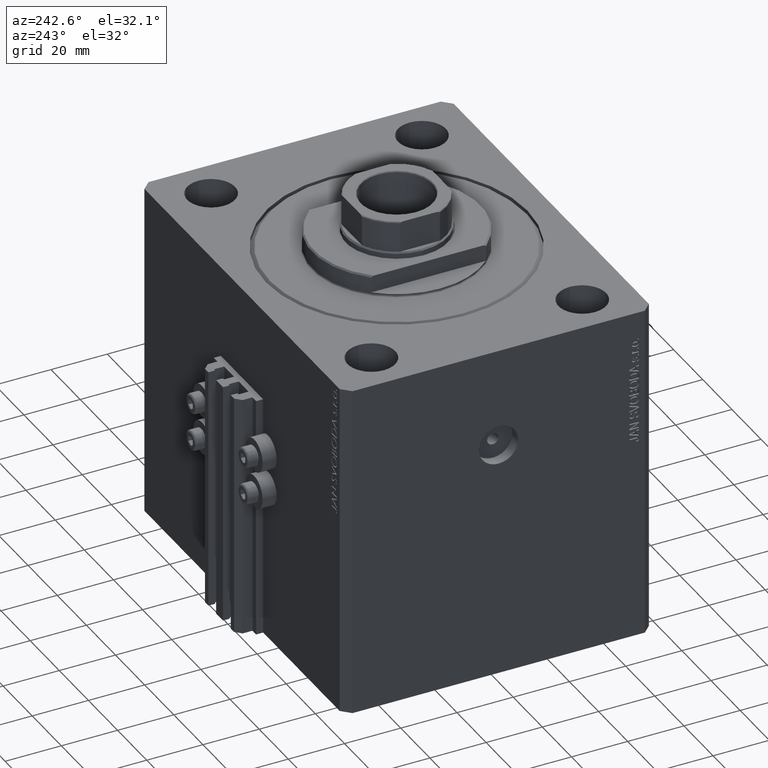
[diagram: clean part render]
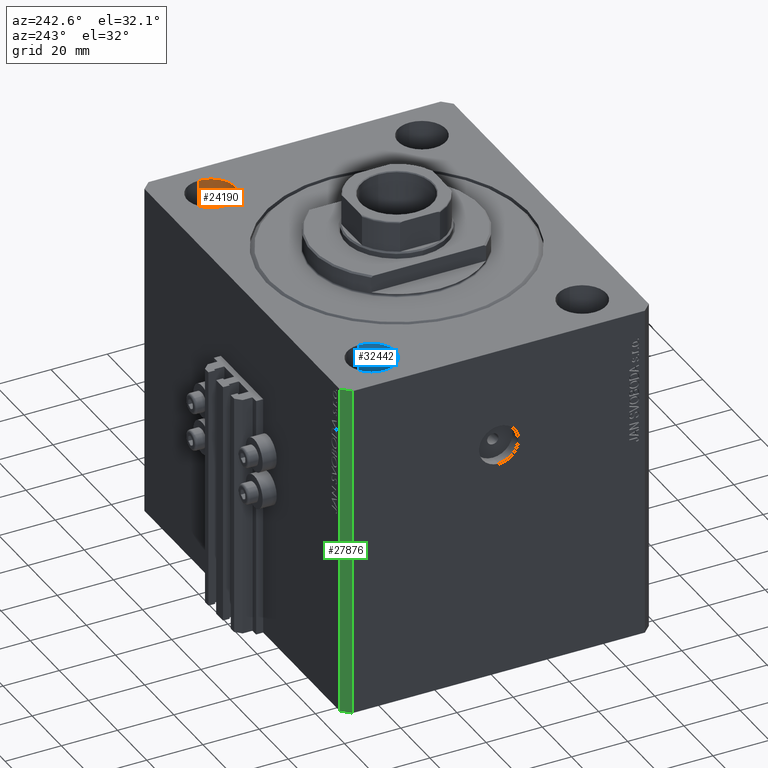
[diagram: same view with three faces highlighted in distinct colors, each labeled with its STEP entity id]
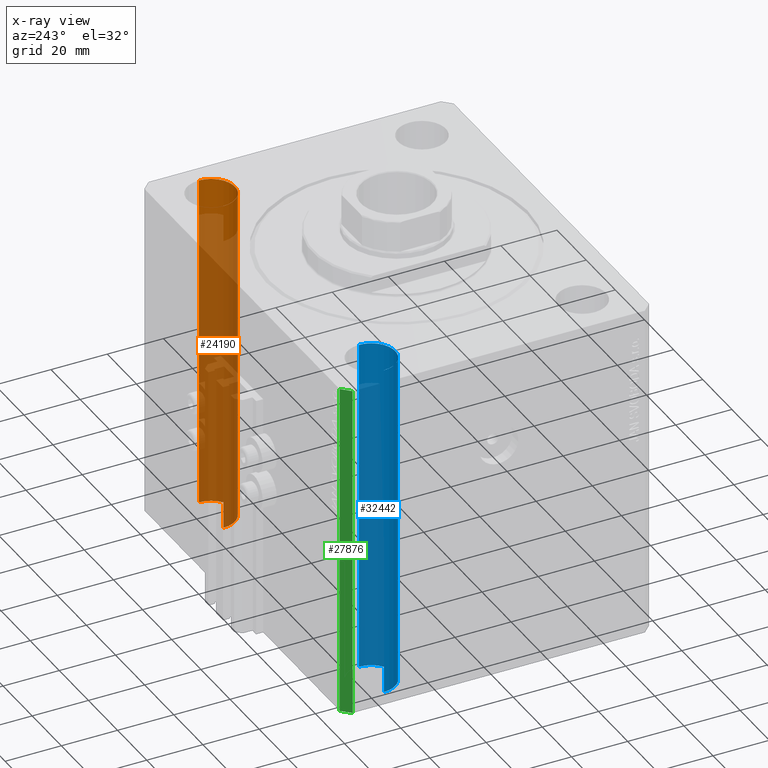
[diagram: x-ray of the same camera — body ghosted, the three highlighted faces saturated]
A machine part, auxiliary view with three faces highlighted in distinct colors.
The next image is the same camera in x-ray (body ghosted, the three faces saturated) — at least one of them is partly hidden behind the body in this view.
Their STEP definitions:

[orange] entity #24190 — the highlighted cylindrical surface (edge-blend (fillet) strip) has radius 8.5 mm, axis along (0, 0, 1).
#97 = CARTESIAN_POINT ( 'NONE',  ( 55.00000000000000711, 37.49999999999998579, 0.000000000000000000 ) ) ;
#1755 = AXIS2_PLACEMENT_3D ( 'NONE', #42468, #35067, #42227 ) ;
#2306 = ORIENTED_EDGE ( 'NONE', *, *, #18747, .F. ) ;
#2996 = DIRECTION ( 'NONE',  ( 1.000000000000000000, 0.000000000000000000, 0.000000000000000000 ) ) ;
#5436 = AXIS2_PLACEMENT_3D ( 'NONE', #97, #39843, #14688 ) ;
#6579 = CYLINDRICAL_SURFACE ( 'NONE', #20098, 8.499999999999992895 ) ;
#7972 = ORIENTED_EDGE ( 'NONE', *, *, #15176, .T. ) ;
#9890 = VERTEX_POINT ( 'NONE', #35789 ) ;
#11578 = VERTEX_POINT ( 'NONE', #32713 ) ;
#13872 = CIRCLE ( 'NONE', #5436, 8.499999999999992895 ) ;
#14019 = DIRECTION ( 'NONE',  ( -0.000000000000000000, -0.000000000000000000, 1.000000000000000000 ) ) ;
#14688 = DIRECTION ( 'NONE',  ( 1.000000000000000000, 0.000000000000000000, 0.000000000000000000 ) ) ;
#14726 = LINE ( 'NONE', #47303, #26121 ) ;
#15176 = EDGE_CURVE ( 'NONE', #45822, #9890, #13872, .T. ) ;
#15776 = LINE ( 'NONE', #26087, #40271 ) ;
#17801 = CIRCLE ( 'NONE', #1755, 8.499999999999992895 ) ;
#18747 = EDGE_CURVE ( 'NONE', #24942, #9890, #14726, .T. ) ;
#20098 = AXIS2_PLACEMENT_3D ( 'NONE', #24764, #31714, #2996 ) ;
#22865 = EDGE_CURVE ( 'NONE', #24942, #11578, #17801, .T. ) ;
#23589 = CARTESIAN_POINT ( 'NONE',  ( 46.50000000000001421, 37.49999999999998579, 0.000000000000000000 ) ) ;
#24190 = ADVANCED_FACE ( 'NONE', ( #39132 ), #6579, .F. ) ;
#24764 = CARTESIAN_POINT ( 'NONE',  ( 55.00000000000000711, 37.49999999999998579, -144.0416305603426395 ) ) ;
#24942 = VERTEX_POINT ( 'NONE', #36585 ) ;
#26087 = CARTESIAN_POINT ( 'NONE',  ( 46.50000000000001421, 37.49999999999998579, -144.0416305603426395 ) ) ;
#26121 = VECTOR ( 'NONE', #14019, 1000.000000000000000 ) ;
#31714 = DIRECTION ( 'NONE',  ( -0.000000000000000000, -0.000000000000000000, 1.000000000000000000 ) ) ;
#32713 = CARTESIAN_POINT ( 'NONE',  ( 46.50000000000001421, 37.49999999999998579, -120.0000000000000000 ) ) ;
#33283 = DIRECTION ( 'NONE',  ( -0.000000000000000000, -0.000000000000000000, 1.000000000000000000 ) ) ;
#33445 = EDGE_LOOP ( 'NONE', ( #35528, #33598, #7972, #2306 ) ) ;
#33598 = ORIENTED_EDGE ( 'NONE', *, *, #35243, .T. ) ;
#35067 = DIRECTION ( 'NONE',  ( -0.000000000000000000, -0.000000000000000000, -1.000000000000000000 ) ) ;
#35243 = EDGE_CURVE ( 'NONE', #11578, #45822, #15776, .T. ) ;
#35528 = ORIENTED_EDGE ( 'NONE', *, *, #22865, .T. ) ;
#35789 = CARTESIAN_POINT ( 'NONE',  ( 63.50000000000000000, 37.49999999999998579, 0.000000000000000000 ) ) ;
#36585 = CARTESIAN_POINT ( 'NONE',  ( 63.50000000000000000, 37.49999999999998579, -120.0000000000000000 ) ) ;
#39132 = FACE_OUTER_BOUND ( 'NONE', #33445, .T. ) ;
#39843 = DIRECTION ( 'NONE',  ( 0.000000000000000000, 0.000000000000000000, 1.000000000000000000 ) ) ;
#40271 = VECTOR ( 'NONE', #33283, 1000.000000000000000 ) ;
#42227 = DIRECTION ( 'NONE',  ( 1.000000000000000000, 0.000000000000000000, 0.000000000000000000 ) ) ;
#42468 = CARTESIAN_POINT ( 'NONE',  ( 55.00000000000000711, 37.49999999999998579, -120.0000000000000000 ) ) ;
#45822 = VERTEX_POINT ( 'NONE', #23589 ) ;
#47303 = CARTESIAN_POINT ( 'NONE',  ( 63.50000000000000000, 37.49999999999998579, -144.0416305603426395 ) ) ;

[blue] entity #32442 — the highlighted cylindrical surface (edge-blend (fillet) strip) has radius 8.5 mm, axis along (0, 0, 1).
#673 = DIRECTION ( 'NONE',  ( 1.000000000000000000, 0.000000000000000000, 0.000000000000000000 ) ) ;
#904 = DIRECTION ( 'NONE',  ( 1.000000000000000000, 0.000000000000000000, 0.000000000000000000 ) ) ;
#2392 = VERTEX_POINT ( 'NONE', #41295 ) ;
#3655 = VERTEX_POINT ( 'NONE', #33913 ) ;
#5285 = CIRCLE ( 'NONE', #45817, 8.500000000000000000 ) ;
#7016 = DIRECTION ( 'NONE',  ( -0.000000000000000000, -0.000000000000000000, 1.000000000000000000 ) ) ;
#9214 = DIRECTION ( 'NONE',  ( -0.000000000000000000, -0.000000000000000000, -1.000000000000000000 ) ) ;
#9631 = ORIENTED_EDGE ( 'NONE', *, *, #42693, .T. ) ;
#10579 = EDGE_LOOP ( 'NONE', ( #9631, #45577, #21814, #37463 ) ) ;
#10980 = LINE ( 'NONE', #28953, #21278 ) ;
#11630 = VERTEX_POINT ( 'NONE', #37937 ) ;
#12356 = CARTESIAN_POINT ( 'NONE',  ( -55.00000000000000000, 37.50000000000000000, -144.0416305603426395 ) ) ;
#14655 = CARTESIAN_POINT ( 'NONE',  ( -63.50000000000000000, 37.50000000000000000, -144.0416305603426395 ) ) ;
#14961 = AXIS2_PLACEMENT_3D ( 'NONE', #12356, #23372, #673 ) ;
#15016 = CARTESIAN_POINT ( 'NONE',  ( -55.00000000000000000, 37.50000000000000000, 0.000000000000000000 ) ) ;
#16177 = CYLINDRICAL_SURFACE ( 'NONE', #14961, 8.500000000000000000 ) ;
#19891 = CARTESIAN_POINT ( 'NONE',  ( -46.50000000000000000, 37.50000000000000000, -120.0000000000000000 ) ) ;
#19936 = VERTEX_POINT ( 'NONE', #19891 ) ;
#20188 = DIRECTION ( 'NONE',  ( 1.000000000000000000, 0.000000000000000000, 0.000000000000000000 ) ) ;
#21069 = CIRCLE ( 'NONE', #30255, 8.500000000000000000 ) ;
#21278 = VECTOR ( 'NONE', #25120, 1000.000000000000000 ) ;
#21814 = ORIENTED_EDGE ( 'NONE', *, *, #29851, .T. ) ;
#23372 = DIRECTION ( 'NONE',  ( -0.000000000000000000, -0.000000000000000000, 1.000000000000000000 ) ) ;
#24284 = CARTESIAN_POINT ( 'NONE',  ( -55.00000000000000000, 37.50000000000000000, -120.0000000000000000 ) ) ;
#25120 = DIRECTION ( 'NONE',  ( -0.000000000000000000, -0.000000000000000000, 1.000000000000000000 ) ) ;
#25804 = DIRECTION ( 'NONE',  ( 0.000000000000000000, 0.000000000000000000, 1.000000000000000000 ) ) ;
#28953 = CARTESIAN_POINT ( 'NONE',  ( -46.50000000000000000, 37.50000000000000000, -144.0416305603426395 ) ) ;
#29851 = EDGE_CURVE ( 'NONE', #2392, #3655, #21069, .T. ) ;
#29870 = FACE_OUTER_BOUND ( 'NONE', #10579, .T. ) ;
#30255 = AXIS2_PLACEMENT_3D ( 'NONE', #15016, #25804, #904 ) ;
#30926 = EDGE_CURVE ( 'NONE', #11630, #2392, #40510, .T. ) ;
#32442 = ADVANCED_FACE ( 'NONE', ( #29870 ), #16177, .F. ) ;
#33913 = CARTESIAN_POINT ( 'NONE',  ( -46.50000000000000000, 37.50000000000000000, 0.000000000000000000 ) ) ;
#37463 = ORIENTED_EDGE ( 'NONE', *, *, #40553, .F. ) ;
#37937 = CARTESIAN_POINT ( 'NONE',  ( -63.50000000000000000, 37.50000000000000000, -120.0000000000000000 ) ) ;
#40510 = LINE ( 'NONE', #14655, #46345 ) ;
#40553 = EDGE_CURVE ( 'NONE', #19936, #3655, #10980, .T. ) ;
#41295 = CARTESIAN_POINT ( 'NONE',  ( -63.50000000000000000, 37.50000000000000000, 0.000000000000000000 ) ) ;
#42693 = EDGE_CURVE ( 'NONE', #19936, #11630, #5285, .T. ) ;
#45577 = ORIENTED_EDGE ( 'NONE', *, *, #30926, .T. ) ;
#45817 = AXIS2_PLACEMENT_3D ( 'NONE', #24284, #9214, #20188 ) ;
#46345 = VECTOR ( 'NONE', #7016, 1000.000000000000000 ) ;

[green] entity #27876 — the highlighted planar face has unit normal (-0.7071, 0.7071, 0).
#424 = VECTOR ( 'NONE', #38864, 1000.000000000000000 ) ;
#1296 = FACE_OUTER_BOUND ( 'NONE', #28484, .T. ) ;
#1574 = CARTESIAN_POINT ( 'NONE',  ( -67.00000000000000000, 55.00000000000000000, -120.0000000000000000 ) ) ;
#2468 = LINE ( 'NONE', #45324, #424 ) ;
#4376 = VERTEX_POINT ( 'NONE', #16273 ) ;
#5210 = CARTESIAN_POINT ( 'NONE',  ( -70.00000000000000000, 52.00000000000000711, -120.0000000000000000 ) ) ;
#5624 = DIRECTION ( 'NONE',  ( 0.000000000000000000, 0.000000000000000000, 1.000000000000000000 ) ) ;
#9175 = DIRECTION ( 'NONE',  ( -0.7071067811865466846, 0.7071067811865484609, 0.000000000000000000 ) ) ;
#10228 = VERTEX_POINT ( 'NONE', #33494 ) ;
#10413 = CARTESIAN_POINT ( 'NONE',  ( -70.00000000000000000, 52.00000000000000711, -120.0000000000000000 ) ) ;
#14484 = CARTESIAN_POINT ( 'NONE',  ( -67.00000000000000000, 55.00000000000000000, 0.000000000000000000 ) ) ;
#16273 = CARTESIAN_POINT ( 'NONE',  ( -70.00000000000000000, 52.00000000000000711, 0.000000000000000000 ) ) ;
#20148 = PLANE ( 'NONE',  #43989 ) ;
#20384 = ORIENTED_EDGE ( 'NONE', *, *, #34571, .F. ) ;
#20478 = ORIENTED_EDGE ( 'NONE', *, *, #28613, .T. ) ;
#22804 = VERTEX_POINT ( 'NONE', #44952 ) ;
#23698 = VERTEX_POINT ( 'NONE', #5210 ) ;
#24069 = EDGE_CURVE ( 'NONE', #10228, #22804, #31248, .T. ) ;
#25740 = VECTOR ( 'NONE', #28858, 1000.000000000000000 ) ;
#27876 = ADVANCED_FACE ( 'NONE', ( #1296 ), #20148, .T. ) ;
#28484 = EDGE_LOOP ( 'NONE', ( #20384, #29970, #20478, #32134 ) ) ;
#28613 = EDGE_CURVE ( 'NONE', #10228, #23698, #2468, .T. ) ;
#28858 = DIRECTION ( 'NONE',  ( -0.7071067811865483499, -0.7071067811865466846, 0.000000000000000000 ) ) ;
#29970 = ORIENTED_EDGE ( 'NONE', *, *, #24069, .F. ) ;
#31248 = LINE ( 'NONE', #1574, #36215 ) ;
#32134 = ORIENTED_EDGE ( 'NONE', *, *, #44980, .T. ) ;
#33494 = CARTESIAN_POINT ( 'NONE',  ( -67.00000000000000000, 55.00000000000000000, -120.0000000000000000 ) ) ;
#34571 = EDGE_CURVE ( 'NONE', #22804, #4376, #38432, .T. ) ;
#36215 = VECTOR ( 'NONE', #5624, 1000.000000000000000 ) ;
#38432 = LINE ( 'NONE', #14484, #25740 ) ;
#38864 = DIRECTION ( 'NONE',  ( -0.7071067811865483499, -0.7071067811865466846, 0.000000000000000000 ) ) ;
#41960 = DIRECTION ( 'NONE',  ( -0.7071067811865483499, -0.7071067811865465735, 0.000000000000000000 ) ) ;
#43953 = VECTOR ( 'NONE', #47279, 1000.000000000000000 ) ;
#43989 = AXIS2_PLACEMENT_3D ( 'NONE', #46024, #9175, #41960 ) ;
#44952 = CARTESIAN_POINT ( 'NONE',  ( -67.00000000000000000, 55.00000000000000000, 0.000000000000000000 ) ) ;
#44980 = EDGE_CURVE ( 'NONE', #23698, #4376, #46567, .T. ) ;
#45324 = CARTESIAN_POINT ( 'NONE',  ( -67.00000000000000000, 55.00000000000000000, -120.0000000000000000 ) ) ;
#46024 = CARTESIAN_POINT ( 'NONE',  ( -67.00000000000000000, 55.00000000000000000, -120.0000000000000000 ) ) ;
#46567 = LINE ( 'NONE', #10413, #43953 ) ;
#47279 = DIRECTION ( 'NONE',  ( 0.000000000000000000, 0.000000000000000000, 1.000000000000000000 ) ) ;